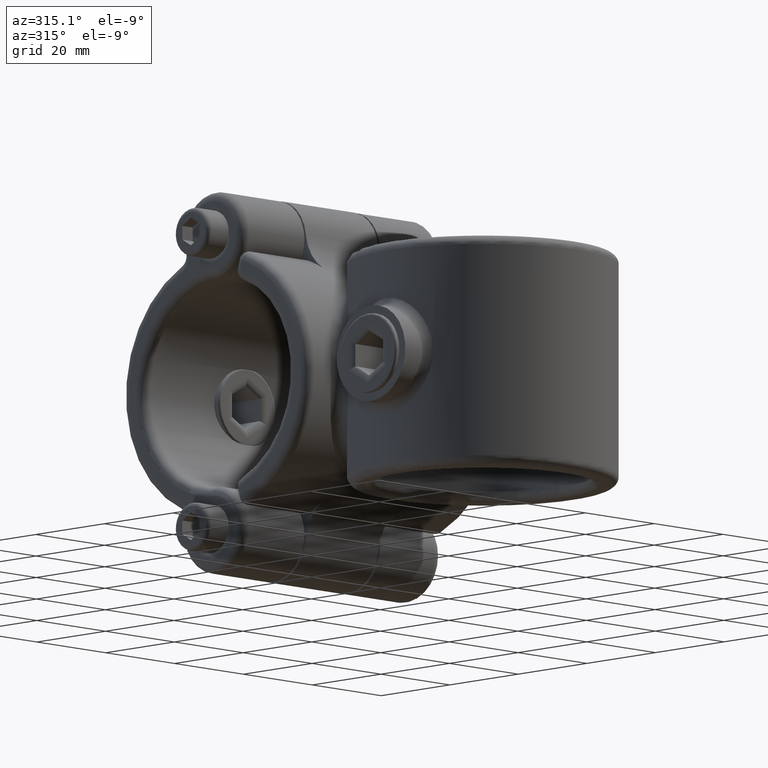
[diagram: clean part render]
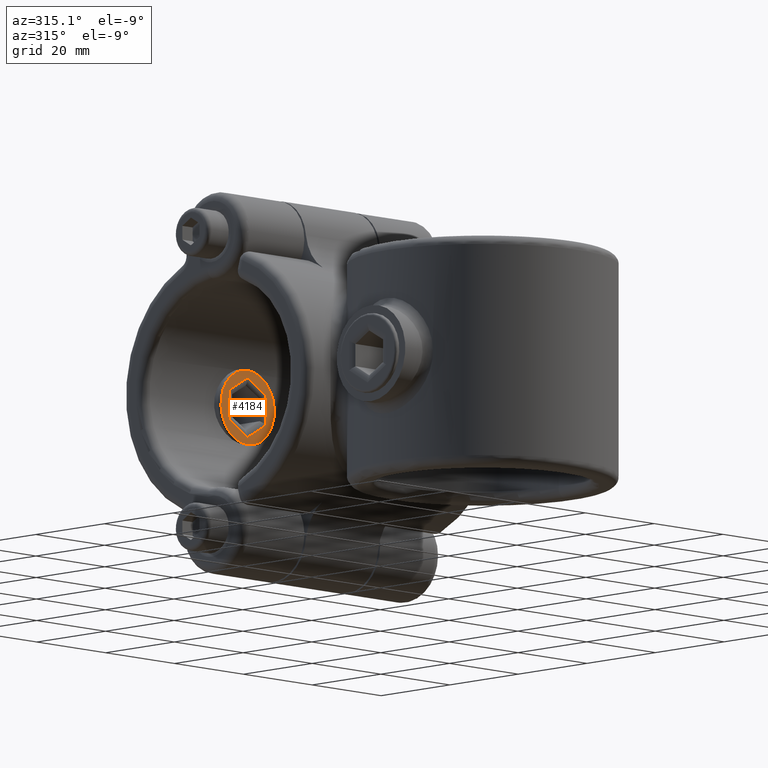
[diagram: same view with one face highlighted and labeled with its STEP entity id]
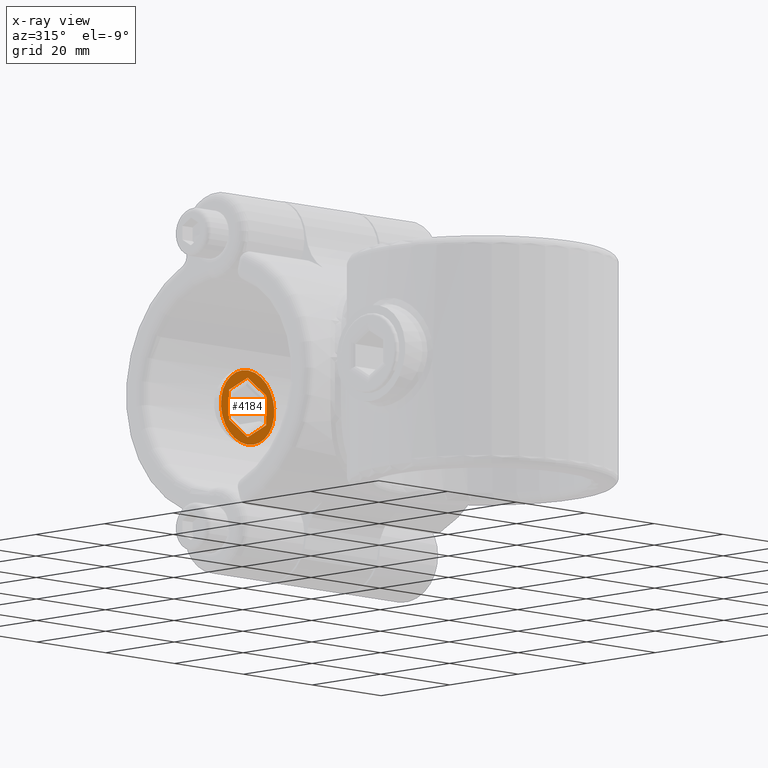
[diagram: x-ray of the same camera — body ghosted, the highlighted face saturated]
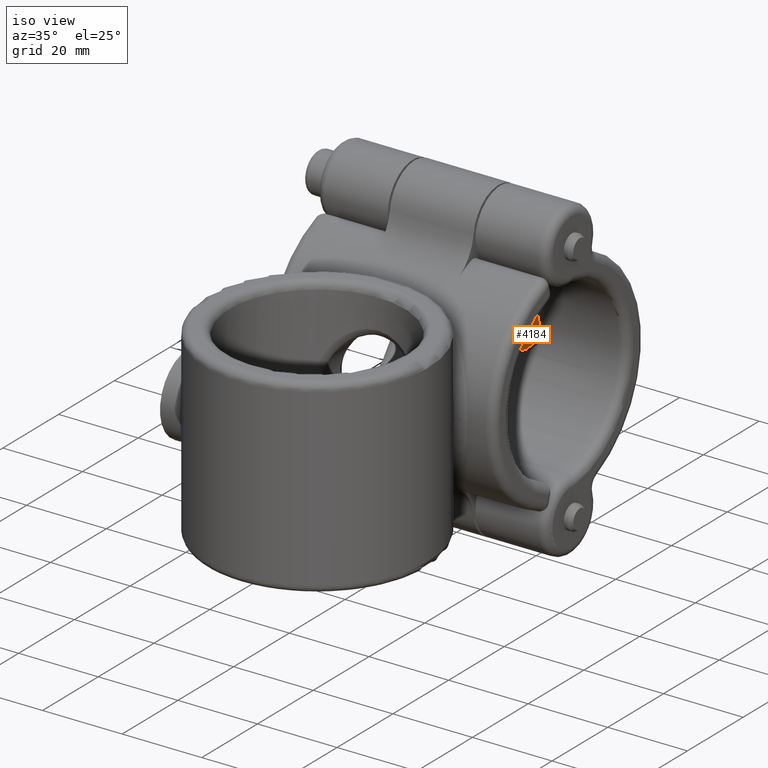
[diagram: same view with one face highlighted and labeled with its STEP entity id]
A machine part, auxiliary view. The second image highlights one B-rep face of the part: STEP entity #4184.
The next image is the same camera in x-ray: the body ghosted, the highlighted face saturated — about 0% of this face is hidden behind the body in this view.
A second angle (iso view) of the same face is appended — the face is thin or edge-on in the first view.
In plain terms, the highlighted planar face has unit normal (0, 1, 0).
Its self-contained STEP definition (entity closure, byte-faithful):
#108 = EDGE_CURVE ( 'NONE', #2708, #3276, #7573, .T. ) ;
#145 = EDGE_CURVE ( 'NONE', #5882, #4174, #7384, .T. ) ;
#255 = VECTOR ( 'NONE', #275, 1000.000000000000000 ) ;
#275 = DIRECTION ( 'NONE',  ( -0.4999999999999998890, 0.000000000000000000, -0.8660254037844387076 ) ) ;
#362 = DIRECTION ( 'NONE',  ( 0.000000000000000000, -0.000000000000000000, 1.000000000000000000 ) ) ;
#399 = VECTOR ( 'NONE', #4386, 1000.000000000000000 ) ;
#650 = ORIENTED_EDGE ( 'NONE', *, *, #6829, .T. ) ;
#889 = CARTESIAN_POINT ( 'NONE',  ( 0.000000000000000000, 0.000000000000000000, -5.371544418224547535 ) ) ;
#996 = CARTESIAN_POINT ( 'NONE',  ( -6.202525231651945248, 0.000000000000000000, 0.000000000000000000 ) ) ;
#1180 = EDGE_CURVE ( 'NONE', #3207, #5882, #5376, .T. ) ;
#1216 = VERTEX_POINT ( 'NONE', #7261 ) ;
#1230 = CARTESIAN_POINT ( 'NONE',  ( -4.651893923738960268, 0.000000000000000000, -2.685772209112271547 ) ) ;
#1316 = VECTOR ( 'NONE', #3025, 1000.000000000000227 ) ;
#1535 = EDGE_LOOP ( 'NONE', ( #650 ) ) ;
#1798 = VERTEX_POINT ( 'NONE', #3135 ) ;
#1804 = EDGE_CURVE ( 'NONE', #4174, #1798, #4885, .T. ) ;
#1868 = DIRECTION ( 'NONE',  ( 0.000000000000000000, 0.000000000000000000, 1.000000000000000000 ) ) ;
#1884 = EDGE_CURVE ( 'NONE', #3276, #3207, #5160, .T. ) ;
#2030 = CARTESIAN_POINT ( 'NONE',  ( 3.101262615825976621, 0.000000000000000000, 5.371544418224549311 ) ) ;
#2248 = CARTESIAN_POINT ( 'NONE',  ( 3.101262615825972624, 0.000000000000000000, -5.371544418224547535 ) ) ;
#2620 = PLANE ( 'NONE',  #5115 ) ;
#2708 = VERTEX_POINT ( 'NONE', #2030 ) ;
#2889 = AXIS2_PLACEMENT_3D ( 'NONE', #3579, #5393, #1868 ) ;
#3025 = DIRECTION ( 'NONE',  ( 0.4999999999999992228, 0.000000000000000000, -0.8660254037844390407 ) ) ;
#3135 = CARTESIAN_POINT ( 'NONE',  ( -3.101262615825973512, 0.000000000000000000, 5.371544418224547535 ) ) ;
#3207 = VERTEX_POINT ( 'NONE', #2248 ) ;
#3213 = CARTESIAN_POINT ( 'NONE',  ( 0.000000000000000000, 0.000000000000000000, 0.000000000000000000 ) ) ;
#3276 = VERTEX_POINT ( 'NONE', #4281 ) ;
#3424 = CARTESIAN_POINT ( 'NONE',  ( -3.101262615825973068, 0.000000000000000000, -5.371544418224547535 ) ) ;
#3568 = VECTOR ( 'NONE', #4409, 1000.000000000000000 ) ;
#3579 = CARTESIAN_POINT ( 'NONE',  ( 0.000000000000000000, 0.000000000000000000, 0.000000000000000000 ) ) ;
#3892 = DIRECTION ( 'NONE',  ( 0.000000000000000000, 1.000000000000000000, 0.000000000000000000 ) ) ;
#4174 = VERTEX_POINT ( 'NONE', #996 ) ;
#4184 = ADVANCED_FACE ( 'NONE', ( #6959, #5303 ), #2620, .F. ) ;
#4281 = CARTESIAN_POINT ( 'NONE',  ( 6.202525231651945248, 0.000000000000000000, -4.336808689942017736E-16 ) ) ;
#4346 = ORIENTED_EDGE ( 'NONE', *, *, #1884, .T. ) ;
#4368 = ORIENTED_EDGE ( 'NONE', *, *, #1180, .T. ) ;
#4372 = CARTESIAN_POINT ( 'NONE',  ( 4.651893923738960268, 0.000000000000000000, -2.685772209112272435 ) ) ;
#4386 = DIRECTION ( 'NONE',  ( 1.000000000000000000, -0.000000000000000000, 1.855319225643643231E-16 ) ) ;
#4409 = DIRECTION ( 'NONE',  ( -1.000000000000000000, 0.000000000000000000, 0.000000000000000000 ) ) ;
#4633 = ORIENTED_EDGE ( 'NONE', *, *, #108, .T. ) ;
#4643 = EDGE_CURVE ( 'NONE', #1798, #2708, #7236, .T. ) ;
#4693 = VECTOR ( 'NONE', #6661, 1000.000000000000000 ) ;
#4794 = CARTESIAN_POINT ( 'NONE',  ( 4.651893923738963821, 0.000000000000000000, 2.685772209112269326 ) ) ;
#4885 = LINE ( 'NONE', #4978, #4693 ) ;
#4978 = CARTESIAN_POINT ( 'NONE',  ( -4.651893923738961156, 0.000000000000000000, 2.685772209112272435 ) ) ;
#5115 = AXIS2_PLACEMENT_3D ( 'NONE', #3213, #3892, #362 ) ;
#5160 = LINE ( 'NONE', #4372, #255 ) ;
#5303 = FACE_OUTER_BOUND ( 'NONE', #1535, .T. ) ;
#5376 = LINE ( 'NONE', #889, #3568 ) ;
#5393 = DIRECTION ( 'NONE',  ( -0.000000000000000000, -1.000000000000000000, -0.000000000000000000 ) ) ;
#5529 = CIRCLE ( 'NONE', #2889, 7.750000000000000000 ) ;
#5631 = VECTOR ( 'NONE', #5945, 1000.000000000000227 ) ;
#5659 = CARTESIAN_POINT ( 'NONE',  ( -9.965929630530803871E-16, 0.000000000000000000, 5.371544418224548423 ) ) ;
#5882 = VERTEX_POINT ( 'NONE', #3424 ) ;
#5945 = DIRECTION ( 'NONE',  ( -0.4999999999999997780, 0.000000000000000000, 0.8660254037844387076 ) ) ;
#6334 = ORIENTED_EDGE ( 'NONE', *, *, #1804, .T. ) ;
#6390 = ORIENTED_EDGE ( 'NONE', *, *, #145, .T. ) ;
#6661 = DIRECTION ( 'NONE',  ( 0.4999999999999998335, -0.000000000000000000, 0.8660254037844387076 ) ) ;
#6829 = EDGE_CURVE ( 'NONE', #1216, #1216, #5529, .T. ) ;
#6842 = EDGE_LOOP ( 'NONE', ( #6390, #6334, #6976, #4633, #4346, #4368 ) ) ;
#6959 = FACE_BOUND ( 'NONE', #6842, .T. ) ;
#6976 = ORIENTED_EDGE ( 'NONE', *, *, #4643, .T. ) ;
#7236 = LINE ( 'NONE', #5659, #399 ) ;
#7261 = CARTESIAN_POINT ( 'NONE',  ( 0.000000000000000000, 0.000000000000000000, 7.750000000000000000 ) ) ;
#7384 = LINE ( 'NONE', #1230, #5631 ) ;
#7573 = LINE ( 'NONE', #4794, #1316 ) ;